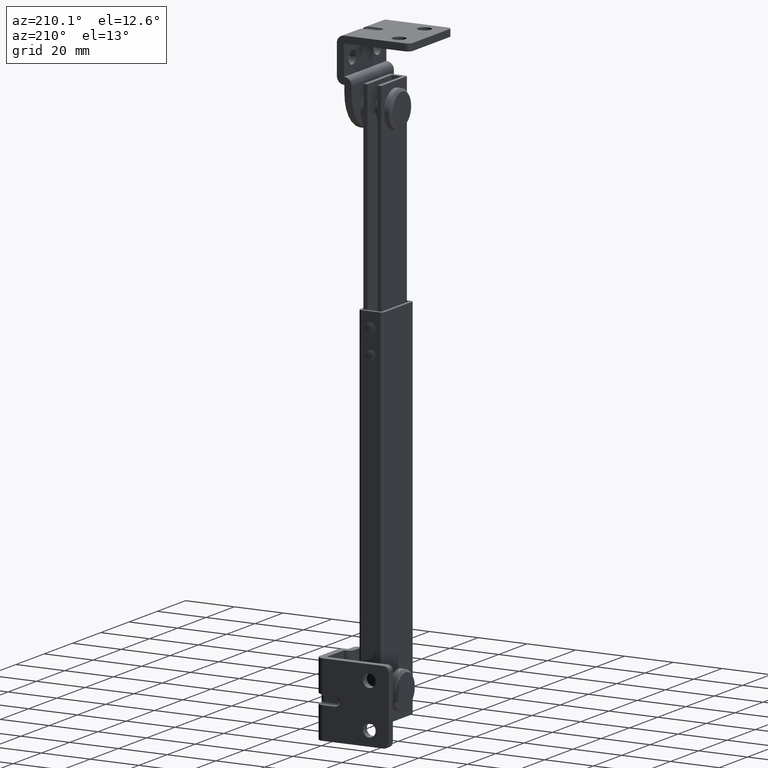
[diagram: clean part render]
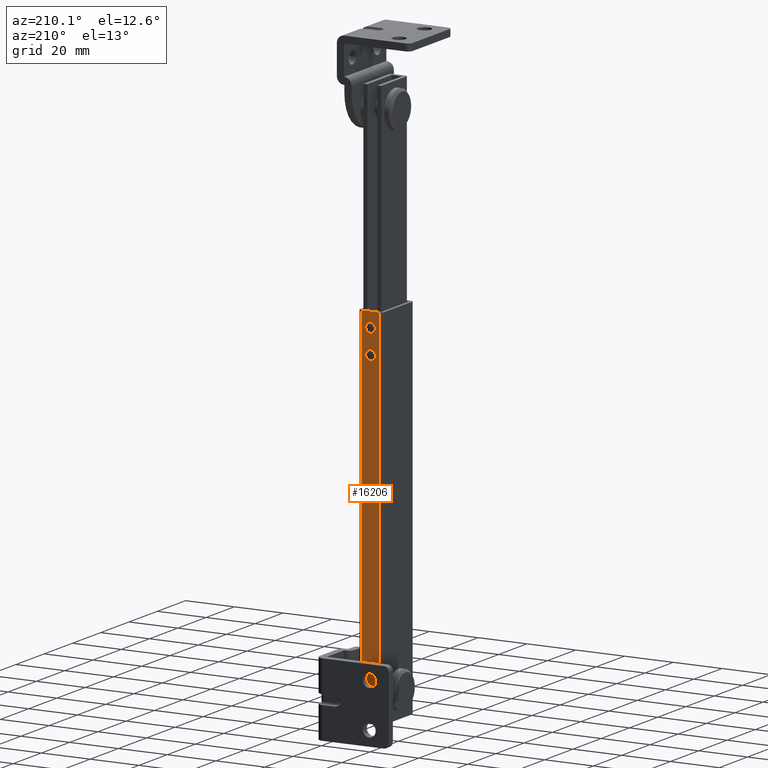
[diagram: same view with one face highlighted and labeled with its STEP entity id]
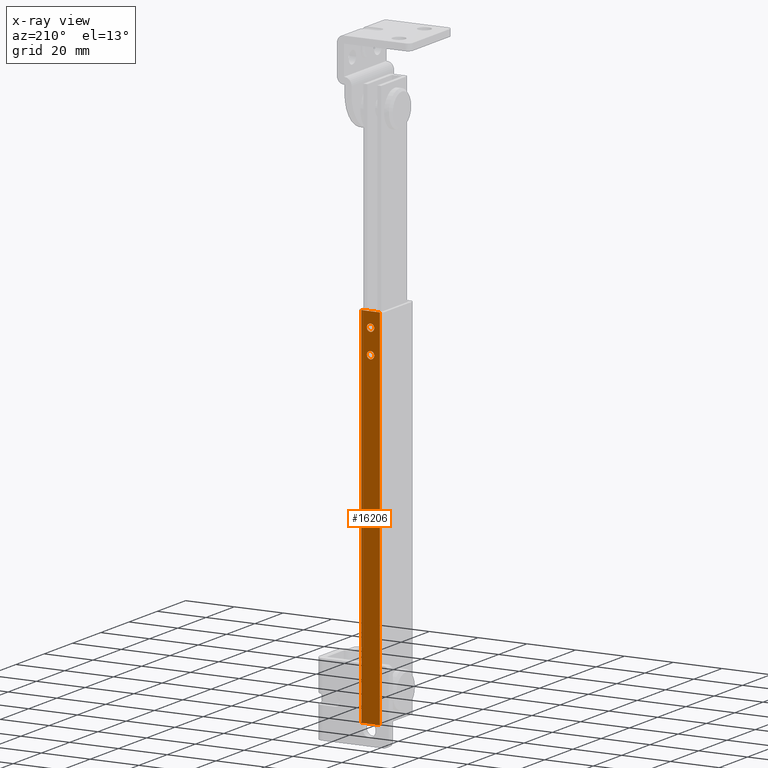
[diagram: x-ray of the same camera — body ghosted, the highlighted face saturated]
A machine part, auxiliary view. The second image highlights one B-rep face of the part: STEP entity #16206.
The next image is the same camera in x-ray: the body ghosted, the highlighted face saturated — about 0% of this face is hidden behind the body in this view.
In plain terms, the highlighted face is a freeform B-spline surface patch.
Its self-contained STEP definition (entity closure, byte-faithful):
#15064=CARTESIAN_POINT('',(6.489514289061608,11.0,133.177051356056100));
#15065=VERTEX_POINT('',#15064);
#15071=CARTESIAN_POINT('',(5.0,11.0,131.500000000000000));
#15072=VERTEX_POINT('',#15071);
#15073=CARTESIAN_POINT('',(6.489514289061608,11.0,133.177051356056150));
#15074=CARTESIAN_POINT('',(6.500000000000002,11.000000000000004,133.088836183591890));
#15075=CARTESIAN_POINT('',(6.500000000000001,11.0,133.0));
#15076=CARTESIAN_POINT('',(6.500000000000003,11.0,131.500000000000000));
#15077=CARTESIAN_POINT('',(5.0,11.0,131.500000000000000));
#15085=(BOUNDED_CURVE()B_SPLINE_CURVE(2,(#15073,#15074,#15075,#15076,#15077),.UNSPECIFIED.,.F.,.U.)B_SPLINE_CURVE_WITH_KNOTS((3,2,3),(0.229562472591850,0.250000000000000,0.500000000000000),.UNSPECIFIED.)CURVE()GEOMETRIC_REPRESENTATION_ITEM()RATIONAL_B_SPLINE_CURVE((0.956026752377211,0.976055947251355,1.0,0.707106781186548,1.0))REPRESENTATION_ITEM(''));
#15086=EDGE_CURVE('',#15065,#15072,#15085,.T.);
#15088=CARTESIAN_POINT('',(3.502797802577264,11.0,132.908427187263190));
#15089=VERTEX_POINT('',#15088);
#15090=CARTESIAN_POINT('',(5.0,11.0,131.500000000000000));
#15091=CARTESIAN_POINT('',(3.588940906127357,11.0,131.500000000000000));
#15092=CARTESIAN_POINT('',(3.502797802577264,11.000000000000004,132.908427187263210));
#15100=(BOUNDED_CURVE()B_SPLINE_CURVE(2,(#15090,#15091,#15092),.UNSPECIFIED.,.F.,.U.)B_SPLINE_CURVE_WITH_KNOTS((3,3),(0.500000000000000,0.739332961450340),.UNSPECIFIED.)CURVE()GEOMETRIC_REPRESENTATION_ITEM()RATIONAL_B_SPLINE_CURVE((1.0,0.719603994210616,0.976072039976592))REPRESENTATION_ITEM(''));
#15101=EDGE_CURVE('',#15072,#15089,#15100,.T.);
#15175=CARTESIAN_POINT('',(5.0,11.0,134.500000000000000));
#15176=VERTEX_POINT('',#15175);
#15177=CARTESIAN_POINT('',(3.502797802577264,11.0,132.908427187263210));
#15178=CARTESIAN_POINT('',(3.500000000000000,10.999999999999996,132.954170851607980));
#15179=CARTESIAN_POINT('',(3.500000000000000,11.0,133.0));
#15180=CARTESIAN_POINT('',(3.499999999999999,11.0,134.500000000000000));
#15181=CARTESIAN_POINT('',(5.0,11.0,134.500000000000000));
#15189=(BOUNDED_CURVE()B_SPLINE_CURVE(2,(#15177,#15178,#15179,#15180,#15181),.UNSPECIFIED.,.F.,.U.)B_SPLINE_CURVE_WITH_KNOTS((3,2,3),(0.739332961450340,0.750000000000000,1.0),.UNSPECIFIED.)CURVE()GEOMETRIC_REPRESENTATION_ITEM()RATIONAL_B_SPLINE_CURVE((0.976072039976591,0.987502786975931,1.0,0.707106781186548,1.0))REPRESENTATION_ITEM(''));
#15190=EDGE_CURVE('',#15089,#15176,#15189,.T.);
#15192=CARTESIAN_POINT('',(5.0,11.0,134.500000000000000));
#15193=CARTESIAN_POINT('',(6.332261781593467,11.0,134.500000000000000));
#15194=CARTESIAN_POINT('',(6.489514289061608,11.0,133.177051356056150));
#15202=(BOUNDED_CURVE()B_SPLINE_CURVE(2,(#15192,#15193,#15194),.UNSPECIFIED.,.F.,.U.)B_SPLINE_CURVE_WITH_KNOTS((3,3),(0.0,0.229562472591850),.UNSPECIFIED.)CURVE()GEOMETRIC_REPRESENTATION_ITEM()RATIONAL_B_SPLINE_CURVE((1.0,0.731050833935193,0.956026752377211))REPRESENTATION_ITEM(''));
#15203=EDGE_CURVE('',#15176,#15065,#15202,.T.);
#15250=CARTESIAN_POINT('',(6.489514289061606,11.0,123.177051356056100));
#15251=VERTEX_POINT('',#15250);
#15257=CARTESIAN_POINT('',(5.0,11.0,121.500000000000000));
#15258=VERTEX_POINT('',#15257);
#15259=CARTESIAN_POINT('',(6.489514289061606,11.000000000000002,123.177051356056110));
#15260=CARTESIAN_POINT('',(6.500000000000002,11.000000000000004,123.088836183591870));
#15261=CARTESIAN_POINT('',(6.500000000000001,11.0,123.0));
#15262=CARTESIAN_POINT('',(6.500000000000003,11.0,121.500000000000010));
#15263=CARTESIAN_POINT('',(5.0,11.0,121.500000000000000));
#15271=(BOUNDED_CURVE()B_SPLINE_CURVE(2,(#15259,#15260,#15261,#15262,#15263),.UNSPECIFIED.,.F.,.U.)B_SPLINE_CURVE_WITH_KNOTS((3,2,3),(0.229562472591848,0.250000000000000,0.500000000000000),.UNSPECIFIED.)CURVE()GEOMETRIC_REPRESENTATION_ITEM()RATIONAL_B_SPLINE_CURVE((0.956026752377208,0.976055947251353,1.0,0.707106781186548,1.0))REPRESENTATION_ITEM(''));
#15272=EDGE_CURVE('',#15251,#15258,#15271,.T.);
#15274=CARTESIAN_POINT('',(3.502797802577264,11.0,122.908427187263200));
#15275=VERTEX_POINT('',#15274);
#15276=CARTESIAN_POINT('',(5.0,11.0,121.500000000000000));
#15277=CARTESIAN_POINT('',(3.588940906127357,11.0,121.500000000000000));
#15278=CARTESIAN_POINT('',(3.502797802577263,11.000000000000004,122.908427187263260));
#15286=(BOUNDED_CURVE()B_SPLINE_CURVE(2,(#15276,#15277,#15278),.UNSPECIFIED.,.F.,.U.)B_SPLINE_CURVE_WITH_KNOTS((3,3),(0.500000000000000,0.739332961450340),.UNSPECIFIED.)CURVE()GEOMETRIC_REPRESENTATION_ITEM()RATIONAL_B_SPLINE_CURVE((1.0,0.719603994210616,0.976072039976592))REPRESENTATION_ITEM(''));
#15287=EDGE_CURVE('',#15258,#15275,#15286,.T.);
#15361=CARTESIAN_POINT('',(5.0,11.0,124.500000000000000));
#15362=VERTEX_POINT('',#15361);
#15363=CARTESIAN_POINT('',(3.502797802577264,10.999999999999996,122.908427187263170));
#15364=CARTESIAN_POINT('',(3.500000000000000,11.0,122.954170851608030));
#15365=CARTESIAN_POINT('',(3.500000000000000,11.0,123.0));
#15366=CARTESIAN_POINT('',(3.499999999999999,11.0,124.499999999999990));
#15367=CARTESIAN_POINT('',(5.0,11.0,124.500000000000000));
#15375=(BOUNDED_CURVE()B_SPLINE_CURVE(2,(#15363,#15364,#15365,#15366,#15367),.UNSPECIFIED.,.F.,.U.)B_SPLINE_CURVE_WITH_KNOTS((3,2,3),(0.739332961450340,0.750000000000000,1.0),.UNSPECIFIED.)CURVE()GEOMETRIC_REPRESENTATION_ITEM()RATIONAL_B_SPLINE_CURVE((0.976072039976592,0.987502786975932,1.0,0.707106781186548,1.0))REPRESENTATION_ITEM(''));
#15376=EDGE_CURVE('',#15275,#15362,#15375,.T.);
#15378=CARTESIAN_POINT('',(5.0,11.0,124.500000000000000));
#15379=CARTESIAN_POINT('',(6.332261781593455,11.0,124.500000000000000));
#15380=CARTESIAN_POINT('',(6.489514289061606,11.000000000000004,123.177051356056140));
#15388=(BOUNDED_CURVE()B_SPLINE_CURVE(2,(#15378,#15379,#15380),.UNSPECIFIED.,.F.,.U.)B_SPLINE_CURVE_WITH_KNOTS((3,3),(0.0,0.229562472591848),.UNSPECIFIED.)CURVE()GEOMETRIC_REPRESENTATION_ITEM()RATIONAL_B_SPLINE_CURVE((1.0,0.731050833935194,0.956026752377208))REPRESENTATION_ITEM(''));
#15389=EDGE_CURVE('',#15362,#15251,#15388,.T.);
#15767=CARTESIAN_POINT('',(8.800003000000000,10.999999000000001,139.0));
#15768=VERTEX_POINT('',#15767);
#15782=CARTESIAN_POINT('',(1.199997000000000,11.0,139.0));
#15783=VERTEX_POINT('',#15782);
#15784=CARTESIAN_POINT('',(8.800003000000000,10.999999000000001,139.0));
#15785=CARTESIAN_POINT('',(1.199997000000000,11.0,139.0));
#15786=QUASI_UNIFORM_CURVE('',1,(#15784,#15785),.UNSPECIFIED.,.F.,.U.);
#15787=EDGE_CURVE('',#15768,#15783,#15786,.T.);
#15893=CARTESIAN_POINT('',(1.199997000000000,11.0,-11.0));
#15894=VERTEX_POINT('',#15893);
#15908=CARTESIAN_POINT('',(8.800003000000000,10.999999000000001,-11.0));
#15909=VERTEX_POINT('',#15908);
#15910=CARTESIAN_POINT('',(8.800003000000000,10.999999000000001,-11.0));
#15911=CARTESIAN_POINT('',(1.199997000000000,11.0,-11.0));
#15912=QUASI_UNIFORM_CURVE('',1,(#15910,#15911),.UNSPECIFIED.,.F.,.U.);
#15913=EDGE_CURVE('',#15909,#15894,#15912,.T.);
#16027=CARTESIAN_POINT('',(1.199997000000000,11.0,-11.0));
#16028=CARTESIAN_POINT('',(1.199997000000000,11.0,139.0));
#16029=QUASI_UNIFORM_CURVE('',1,(#16027,#16028),.UNSPECIFIED.,.F.,.U.);
#16030=EDGE_CURVE('',#15894,#15783,#16029,.T.);
#16062=CARTESIAN_POINT('',(8.800003000000000,10.999999000000001,-11.0));
#16063=CARTESIAN_POINT('',(8.800003000000000,10.999999000000001,139.0));
#16064=QUASI_UNIFORM_CURVE('',1,(#16062,#16063),.UNSPECIFIED.,.F.,.U.);
#16065=EDGE_CURVE('',#15909,#15768,#16064,.T.);
#16183=CARTESIAN_POINT('',(0.820376643686867,11.0,146.492499709270900));
#16184=CARTESIAN_POINT('',(0.820376643686867,11.0,-18.492503732584421));
#16185=CARTESIAN_POINT('',(9.179623492211830,11.0,146.492499709270900));
#16186=CARTESIAN_POINT('',(9.179623492211830,11.0,-18.492503732584421));
#16187=B_SPLINE_SURFACE_WITH_KNOTS('',1,1,((#16183,#16185),(#16184,#16186)),.UNSPECIFIED.,.F.,.F.,.U.,(2,2),(2,2),(0.0,164.985003441855300),(0.0,8.359246848524963),.UNSPECIFIED.);
#16188=ORIENTED_EDGE('',*,*,#15787,.F.);
#16189=ORIENTED_EDGE('',*,*,#16065,.F.);
#16190=ORIENTED_EDGE('',*,*,#15913,.T.);
#16191=ORIENTED_EDGE('',*,*,#16030,.T.);
#16192=EDGE_LOOP('',(#16188,#16189,#16190,#16191));
#16193=FACE_OUTER_BOUND('',#16192,.T.);
#16194=ORIENTED_EDGE('',*,*,#15287,.F.);
#16195=ORIENTED_EDGE('',*,*,#15272,.F.);
#16196=ORIENTED_EDGE('',*,*,#15389,.F.);
#16197=ORIENTED_EDGE('',*,*,#15376,.F.);
#16198=EDGE_LOOP('',(#16194,#16195,#16196,#16197));
#16199=FACE_BOUND('',#16198,.T.);
#16200=ORIENTED_EDGE('',*,*,#15101,.F.);
#16201=ORIENTED_EDGE('',*,*,#15086,.F.);
#16202=ORIENTED_EDGE('',*,*,#15203,.F.);
#16203=ORIENTED_EDGE('',*,*,#15190,.F.);
#16204=EDGE_LOOP('',(#16200,#16201,#16202,#16203));
#16205=FACE_BOUND('',#16204,.T.);
#16206=ADVANCED_FACE('',(#16193,#16199,#16205),#16187,.F.);